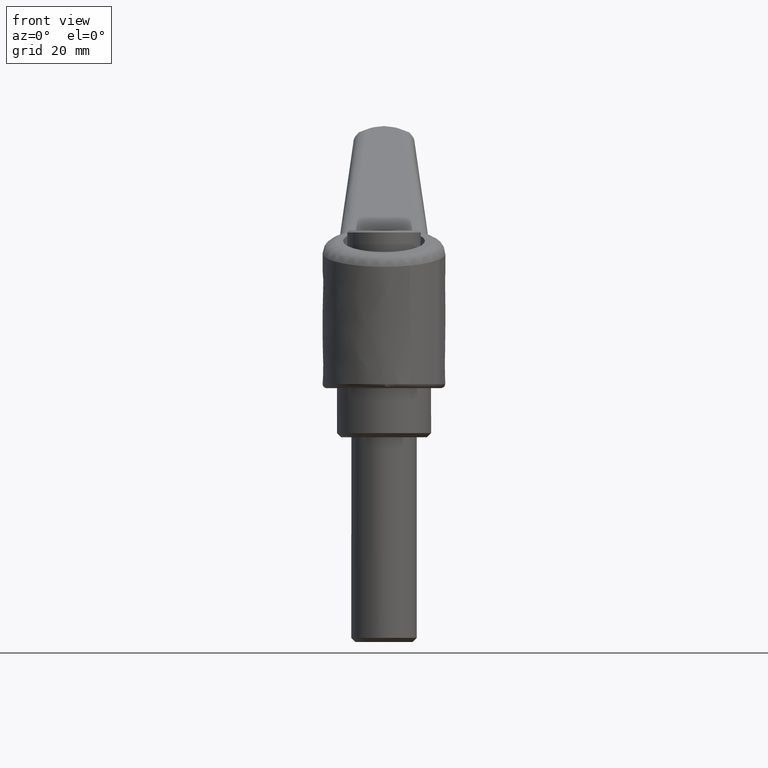
[diagram: clean part render]
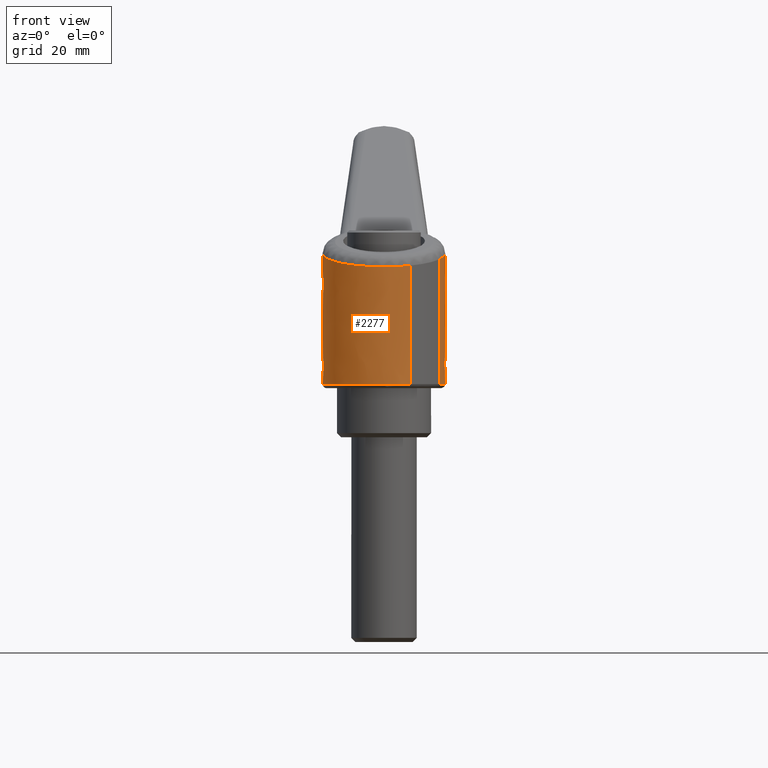
[diagram: same view with one face highlighted and labeled with its STEP entity id]
A machine part, front view. The second image highlights one B-rep face of the part: STEP entity #2277.
In plain terms, the highlighted face is a freeform B-spline surface patch.
Its self-contained STEP definition (entity closure, byte-faithful):
#1974=CARTESIAN_POINT('',(-13.591124882688906,-6.346757000480984,47.708890107250667));
#1975=CARTESIAN_POINT('',(-16.597402736805911,0.090971392818113,47.708890107250674));
#1976=CARTESIAN_POINT('',(-13.520736450297839,6.495358792367610,47.708890107250681));
#1977=CARTESIAN_POINT('',(-7.025377657930231,20.016095242665443,47.708890107250681));
#1978=CARTESIAN_POINT('',(6.495358792367610,13.520736450297839,47.708890107250681));
#1979=CARTESIAN_POINT('',(20.016095242665443,7.025377657930231,47.708890107250681));
#1980=CARTESIAN_POINT('',(13.520736450297839,-6.495358792367610,47.708890107250681));
#1981=CARTESIAN_POINT('',(7.025377657930231,-20.016095242665443,47.708890107250681));
#1982=CARTESIAN_POINT('',(-6.495358792367610,-13.520736450297839,47.708890107250681));
#1983=CARTESIAN_POINT('',(-13.591124882688906,-6.346757000480984,12.132277743066284));
#1984=CARTESIAN_POINT('',(-16.597402736805911,0.090971392818113,12.132277743066286));
#1985=CARTESIAN_POINT('',(-13.520736450297839,6.495358792367610,12.132277743066281));
#1986=CARTESIAN_POINT('',(-7.025377657930231,20.016095242665443,12.132277743066282));
#1987=CARTESIAN_POINT('',(6.495358792367610,13.520736450297839,12.132277743066281));
#1988=CARTESIAN_POINT('',(20.016095242665443,7.025377657930231,12.132277743066282));
#1989=CARTESIAN_POINT('',(13.520736450297839,-6.495358792367610,12.132277743066281));
#1990=CARTESIAN_POINT('',(7.025377657930231,-20.016095242665443,12.132277743066282));
#1991=CARTESIAN_POINT('',(-6.495358792367610,-13.520736450297839,12.132277743066281));
#1999=(BOUNDED_SURFACE()B_SPLINE_SURFACE(2,1,((#1974,#1983),(#1975,#1984),(#1976,#1985),(#1977,#1986),(#1978,#1987),(#1979,#1988),(#1980,#1989),(#1981,#1990),(#1982,#1991)),.UNSPECIFIED.,.F.,.F.,.U.)B_SPLINE_SURFACE_WITH_KNOTS((3,2,2,2,3),(2,2),(0.0,13.917575695735991,38.770389438121683,63.623203180507389,88.476016922893081),(0.0,35.576612364184399),.UNSPECIFIED.)GEOMETRIC_REPRESENTATION_ITEM()RATIONAL_B_SPLINE_SURFACE(((0.855662221768731,0.855662221768731),(0.835979797464467,0.835979797464467),(1.0,1.0),(0.707106781186548,0.707106781186548),(1.0,1.0),(0.707106781186548,0.707106781186548),(1.0,1.0),(0.707106781186548,0.707106781186548),(1.0,1.0)))REPRESENTATION_ITEM('')SURFACE());
#2000=CARTESIAN_POINT('',(-14.995262839249410,-0.376951431653497,12.999999995851271));
#2001=VERTEX_POINT('',#2000);
#2002=CARTESIAN_POINT('',(-13.591124882681889,-6.346757000495048,12.999999997544970));
#2003=VERTEX_POINT('',#2002);
#2004=CARTESIAN_POINT('',(-14.995262839249412,-0.376951431653497,12.999999995851267));
#2005=CARTESIAN_POINT('',(-14.916542618360234,-3.508469987793015,12.999999996739721));
#2006=CARTESIAN_POINT('',(-13.591124882681889,-6.346757000495050,12.999999997544979));
#2014=(BOUNDED_CURVE()B_SPLINE_CURVE(2,(#2004,#2005,#2006),.UNSPECIFIED.,.F.,.U.)B_SPLINE_CURVE_WITH_KNOTS((3,3),(0.004420108230273,0.071874271187336),.UNSPECIFIED.)CURVE()GEOMETRIC_REPRESENTATION_ITEM()RATIONAL_B_SPLINE_CURVE((0.989826157681395,0.913593169719137,0.880006035200919))REPRESENTATION_ITEM(''));
#2015=EDGE_CURVE('',#2001,#2003,#2014,.T.);
#2016=ORIENTED_EDGE('',*,*,#2015,.T.);
#2017=CARTESIAN_POINT('',(-13.591118296123440,-6.346771105100308,41.912158465186323));
#2018=VERTEX_POINT('',#2017);
#2019=CARTESIAN_POINT('',(-13.591118296123440,-6.346771105100308,41.912158465186323));
#2020=CARTESIAN_POINT('',(-13.591124882681889,-6.346757000495048,12.999999997544970));
#2021=QUASI_UNIFORM_CURVE('',1,(#2019,#2020),.UNSPECIFIED.,.F.,.U.);
#2022=EDGE_CURVE('',#2018,#2003,#2021,.T.);
#2023=ORIENTED_EDGE('',*,*,#2022,.F.);
#2024=CARTESIAN_POINT('',(9.472244752128422,11.630846029235180,46.862331811850687));
#2025=VERTEX_POINT('',#2024);
#2026=CARTESIAN_POINT('',(-13.591118296123438,-6.346771105100308,41.912158465186323));
#2027=CARTESIAN_POINT('',(-17.878908185706003,2.835196582448638,40.991851073208743));
#2028=CARTESIAN_POINT('',(-10.960801264136990,10.240158969460049,42.476708919969923));
#2029=CARTESIAN_POINT('',(-1.393905066633530,20.480316762061573,44.530085811807695));
#2030=CARTESIAN_POINT('',(9.472244752128422,11.630846029235180,46.862331811850687));
#2038=(BOUNDED_CURVE()B_SPLINE_CURVE(2,(#2026,#2027,#2028,#2029,#2030),.UNSPECIFIED.,.F.,.U.)B_SPLINE_CURVE_WITH_KNOTS((3,2,3),(0.406204512863110,0.666666666666667,1.0),.UNSPECIFIED.)CURVE()GEOMETRIC_REPRESENTATION_ITEM()RATIONAL_B_SPLINE_CURVE((0.908002308991056,0.789588303627976,1.0,0.730720063933333,1.0))REPRESENTATION_ITEM(''));
#2039=EDGE_CURVE('',#2018,#2025,#2038,.T.);
#2040=ORIENTED_EDGE('',*,*,#2039,.T.);
#2041=CARTESIAN_POINT('',(9.472244752128411,11.630846029235180,34.696662421268549));
#2042=VERTEX_POINT('',#2041);
#2043=CARTESIAN_POINT('',(9.472244752128422,11.630846029235180,46.862331811850687));
#2044=CARTESIAN_POINT('',(9.472244752128411,11.630846029235180,34.696662421268549));
#2045=QUASI_UNIFORM_CURVE('',1,(#2043,#2044),.UNSPECIFIED.,.F.,.U.);
#2046=EDGE_CURVE('',#2025,#2042,#2045,.T.);
#2047=ORIENTED_EDGE('',*,*,#2046,.T.);
#2048=CARTESIAN_POINT('',(14.746787140129779,2.744497958407485,32.818825813596952));
#2049=VERTEX_POINT('',#2048);
#2050=CARTESIAN_POINT('',(9.472244752128400,11.630846029235199,34.696662421268549));
#2051=CARTESIAN_POINT('',(9.472244752128415,11.630846029235190,34.401252467343383));
#2052=CARTESIAN_POINT('',(9.492944816944775,11.614095426753840,34.109755411152527));
#2053=CARTESIAN_POINT('',(9.558582053859087,11.560030821302719,33.679136675364347));
#2054=CARTESIAN_POINT('',(9.586232739478280,11.537160557609340,33.536683965164009));
#2055=CARTESIAN_POINT('',(9.653679942450317,11.480783746601730,33.254233473932857));
#2056=CARTESIAN_POINT('',(9.732131261601346,11.414717547166370,32.979014300604547));
#2057=CARTESIAN_POINT('',(9.831454725673288,11.329067455086181,32.717900929853677));
#2058=CARTESIAN_POINT('',(9.913361518577082,11.257290138315240,32.527265103854113));
#2059=CARTESIAN_POINT('',(9.941899784470280,11.232106379840880,32.464586915071372));
#2060=CARTESIAN_POINT('',(10.001383381564210,11.179173292667199,32.340956559279682));
#2061=CARTESIAN_POINT('',(10.032411420022051,11.151348919868530,32.279852251577282));
#2062=CARTESIAN_POINT('',(10.192376168567931,11.006600481996090,31.980556803269920));
#2063=CARTESIAN_POINT('',(10.334485880508421,10.873995475359990,31.762735936557540));
#2064=CARTESIAN_POINT('',(10.562947557739809,10.650609508172900,31.463723158300962));
#2065=CARTESIAN_POINT('',(10.641677230648090,10.572043592842951,31.368707297521439));
#2066=CARTESIAN_POINT('',(10.763099641268170,10.447920181294480,31.232866811979509));
#2067=CARTESIAN_POINT('',(10.804233156781970,10.405389434948100,31.188597541427932));
#2068=CARTESIAN_POINT('',(10.886938659385240,10.318825031263000,31.102872865009662));
#2069=CARTESIAN_POINT('',(10.928497129075170,10.274808671006360,31.061420331774489));
#2070=CARTESIAN_POINT('',(11.137114858383530,10.051097265823230,30.860874123145081));
#2071=CARTESIAN_POINT('',(11.306575983725081,9.860585294013822,30.721720190387732));
#2072=CARTESIAN_POINT('',(11.561754138145330,9.557368463816124,30.541335012955219));
#2073=CARTESIAN_POINT('',(11.646992710721159,9.453373959076792,30.485972273195319));
#2074=CARTESIAN_POINT('',(11.817489399223930,9.239354020329184,30.384618995083990));
#2075=CARTESIAN_POINT('',(11.902870152644169,9.129166356521720,30.338569845538149));
#2076=CARTESIAN_POINT('',(12.157861506746899,8.790130176839501,30.215001415268400));
#2077=CARTESIAN_POINT('',(12.322781675888240,8.557552051346672,30.153581011930228));
#2078=CARTESIAN_POINT('',(12.641629783508829,8.079099068573001,30.070286051440601));
#2079=CARTESIAN_POINT('',(12.795563983875560,7.833224848090330,30.048434044170889));
#2080=CARTESIAN_POINT('',(13.017694715186151,7.453931284816294,30.046383570322391));
#2081=CARTESIAN_POINT('',(13.090538015694641,7.325241291298711,30.050921787801979));
#2082=CARTESIAN_POINT('',(13.230737667125741,7.068870227963883,30.070316228730888));
#2083=CARTESIAN_POINT('',(13.298359930187500,6.940768177493420,30.085130714842201));
#2084=CARTESIAN_POINT('',(13.494111860897871,6.556790677737292,30.144632792831349));
#2085=CARTESIAN_POINT('',(13.615138152886979,6.301230969061495,30.204304118509690));
#2086=CARTESIAN_POINT('',(13.783463125659070,5.919080918986607,30.324145567126870));
#2087=CARTESIAN_POINT('',(13.837365806722380,5.791899016394970,30.369167745887150));
#2088=CARTESIAN_POINT('',(13.915012659781530,5.601528304794258,30.444526724312450));
#2089=CARTESIAN_POINT('',(13.940360282627770,5.538138653170063,30.470951859712301));
#2090=CARTESIAN_POINT('',(13.990001664043829,5.411513465866366,30.526463406141239));
#2091=CARTESIAN_POINT('',(14.014333428585701,5.348171552200152,30.555606963317530));
#2092=CARTESIAN_POINT('',(14.132263771835300,5.034958497610840,30.706597363155431));
#2093=CARTESIAN_POINT('',(14.215593958389150,4.793383558122869,30.845053455760269));
#2094=CARTESIAN_POINT('',(14.364096402054869,4.328091043121345,31.155382742955279));
#2095=CARTESIAN_POINT('',(14.429253524544070,4.104378466074226,31.327269760631559));
#2096=CARTESIAN_POINT('',(14.515607515580481,3.782784479812306,31.609994409912488));
#2097=CARTESIAN_POINT('',(14.542489974378681,3.677922128467481,31.708396538594069));
#2098=CARTESIAN_POINT('',(14.592775138381390,3.473044715896026,31.913627395016078));
#2099=CARTESIAN_POINT('',(14.615957167595820,3.373930787567825,32.019560731411062));
#2100=CARTESIAN_POINT('',(14.680240690842460,3.086905375308466,32.346438292570241));
#2101=CARTESIAN_POINT('',(14.716166318582260,2.909030322526693,32.576672565733134));
#2102=CARTESIAN_POINT('',(14.746787140129779,2.744497958407488,32.818825813596952));
#2103=B_SPLINE_CURVE_WITH_KNOTS('',3,(#2050,#2051,#2052,#2053,#2054,#2055,#2056,#2057,#2058,#2059,#2060,#2061,#2062,#2063,#2064,#2065,#2066,#2067,#2068,#2069,#2070,#2071,#2072,#2073,#2074,#2075,#2076,#2077,#2078,#2079,#2080,#2081,#2082,#2083,#2084,#2085,#2086,#2087,#2088,#2089,#2090,#2091,#2092,#2093,#2094,#2095,#2096,#2097,#2098,#2099,#2100,#2101,#2102),.UNSPECIFIED.,.F.,.U.,(4,2,2,1,2,2,2,2,2,2,2,2,2,2,2,2,2,2,2,2,2,2,2,2,2,2,4),(0.0,0.062499999999999,0.093749999999998,0.124999999999997,0.156249999999995,0.171874999999995,0.187499999999994,0.249999999999993,0.281249999999993,0.296874999999993,0.312499999999993,0.374999999999993,0.406249999999993,0.437499999999993,0.499999999999993,0.562499999999993,0.593749999999993,0.624999999999993,0.687499999999993,0.718749999999993,0.734374999999993,0.749999999999994,0.812499999999994,0.874999999999995,0.906249999999996,0.937499999999997,1.0),.UNSPECIFIED.);
#2104=EDGE_CURVE('',#2042,#2049,#2103,.T.);
#2105=ORIENTED_EDGE('',*,*,#2104,.T.);
#2106=CARTESIAN_POINT('',(14.746787140129801,-2.744497958407470,32.818825813596952));
#2107=VERTEX_POINT('',#2106);
#2108=CARTESIAN_POINT('',(14.746787140129790,2.744497958407487,32.818825813596973));
#2109=CARTESIAN_POINT('',(15.257560705390359,7.806256E-015,33.004732164855099));
#2110=CARTESIAN_POINT('',(14.746787140129790,-2.744497958407470,32.818825813596973));
#2118=(BOUNDED_CURVE()B_SPLINE_CURVE(2,(#2108,#2109,#2110),.UNSPECIFIED.,.F.,.U.)CURVE()GEOMETRIC_REPRESENTATION_ITEM()QUASI_UNIFORM_CURVE()RATIONAL_B_SPLINE_CURVE((1.0,0.983119142675316,1.0))REPRESENTATION_ITEM(''));
#2119=EDGE_CURVE('',#2049,#2107,#2118,.T.);
#2120=ORIENTED_EDGE('',*,*,#2119,.T.);
#2121=CARTESIAN_POINT('',(9.472244752128411,-11.630846029235180,34.696662421268549));
#2122=VERTEX_POINT('',#2121);
#2123=CARTESIAN_POINT('',(14.746787140129801,-2.744497958407470,32.818825813596952));
#2124=CARTESIAN_POINT('',(14.716179332458530,-2.908960396126362,32.576775481077732));
#2125=CARTESIAN_POINT('',(14.680383731044749,-3.086113633615762,32.347581720036061));
#2126=CARTESIAN_POINT('',(14.595507139462830,-3.465391059058391,31.915163038263550));
#2127=CARTESIAN_POINT('',(14.546438528985430,-3.667511075274999,31.711931561593289));
#2128=CARTESIAN_POINT('',(14.474447900922151,-3.936172306162459,31.475009534029621));
#2129=CARTESIAN_POINT('',(14.459514306350901,-3.990707966752458,31.428484225866740));
#2130=CARTESIAN_POINT('',(14.428504841583569,-4.101408549250808,31.337188098039309));
#2131=CARTESIAN_POINT('',(14.412395040963100,-4.157686847304808,31.292333145789531));
#2132=CARTESIAN_POINT('',(14.362595742140609,-4.327794645770646,31.161379244055581));
#2133=CARTESIAN_POINT('',(14.327394932473281,-4.443067650794566,31.078718908054562));
#2134=CARTESIAN_POINT('',(14.215339577455151,-4.794215629279675,30.844457828223209));
#2135=CARTESIAN_POINT('',(14.132052260570561,-5.035395940213713,30.706521592145950));
#2136=CARTESIAN_POINT('',(13.992158321267130,-5.407128059806748,30.527119228006779));
#2137=CARTESIAN_POINT('',(13.943028722227940,-5.532704893789415,30.471915490904500));
#2138=CARTESIAN_POINT('',(13.839353549082571,-5.787155323138517,30.370906439408159));
#2139=CARTESIAN_POINT('',(13.784545299284140,-5.916600022642655,30.324949290963900));
#2140=CARTESIAN_POINT('',(13.614216222285760,-6.303371827574208,30.203581590193512));
#2141=CARTESIAN_POINT('',(13.492388125440860,-6.560325690680624,30.143914288401909));
#2142=CARTESIAN_POINT('',(13.231494976419420,-7.071771431849961,30.065003044302969));
#2143=CARTESIAN_POINT('',(13.092434760879710,-7.326264348791181,30.045749980053579));
#2144=CARTESIAN_POINT('',(12.907213109229151,-7.642592791893965,30.047389479833239));
#2145=CARTESIAN_POINT('',(12.869515196833420,-7.705905671814455,30.049017387542520));
#2146=CARTESIAN_POINT('',(12.793371392644589,-7.831669811367920,30.054866542396159));
#2147=CARTESIAN_POINT('',(12.754998944988110,-7.894005085454977,30.059075712349841));
#2148=CARTESIAN_POINT('',(12.639003662415121,-8.079408637072676,30.075474866130449));
#2149=CARTESIAN_POINT('',(12.560502567285941,-8.200876287886189,30.091429327246580));
#2150=CARTESIAN_POINT('',(12.321684850609380,-8.559116132539977,30.153969119739749));
#2151=CARTESIAN_POINT('',(12.158042493786420,-8.789748266704914,30.215112002993600));
#2152=CARTESIAN_POINT('',(11.906866197204691,-9.123922146207402,30.336536621418421));
#2153=CARTESIAN_POINT('',(11.822190923069019,-9.233345244529897,30.381991639431519));
#2154=CARTESIAN_POINT('',(11.651140472893109,-9.448269064071502,30.483347539799269));
#2155=CARTESIAN_POINT('',(11.564449633988220,-9.554124850310478,30.539503150969249));
#2156=CARTESIAN_POINT('',(11.306811537522210,-9.860385429810904,30.721408899661800));
#2157=CARTESIAN_POINT('',(11.137060854232860,-10.051120330726789,30.861021462363741));
#2158=CARTESIAN_POINT('',(10.888295559356161,-10.317936126256720,31.100019199949319));
#2159=CARTESIAN_POINT('',(10.806363085059299,-10.403644147973910,31.184647997462609));
#2160=CARTESIAN_POINT('',(10.685455751991560,-10.527314901872240,31.319644648345701));
#2161=CARTESIAN_POINT('',(10.645486466698159,-10.567722148678190,31.365988505730360));
#2162=CARTESIAN_POINT('',(10.566316547764510,-10.646881615607221,31.461504859669098));
#2163=CARTESIAN_POINT('',(10.527074404683150,-10.685672291026529,31.510742022057570));
#2164=CARTESIAN_POINT('',(10.334990420535400,-10.873554080179360,31.761812632679430));
#2165=CARTESIAN_POINT('',(10.192916395508870,-11.006080857413510,31.979917197608330));
#2166=CARTESIAN_POINT('',(10.034117750205970,-11.149812375343430,32.276569577954263));
#2167=CARTESIAN_POINT('',(10.003304105646500,-11.177454931166350,32.337109273799371));
#2168=CARTESIAN_POINT('',(9.943703443924882,-11.230509943345210,32.460702242025192));
#2169=CARTESIAN_POINT('',(9.914842243126806,-11.255987039956240,32.523935925524633));
#2170=CARTESIAN_POINT('',(9.832228910095113,-11.328399642425589,32.715872478525377));
#2171=CARTESIAN_POINT('',(9.782370977065115,-11.371395581448271,32.846873160627233));
#2172=CARTESIAN_POINT('',(9.693415016618042,-11.447319542945900,33.114930979737260));
#2173=CARTESIAN_POINT('',(9.654317864299898,-11.480246483342411,33.251988679676572));
#2174=CARTESIAN_POINT('',(9.603986417718883,-11.522322815911791,33.462130695155373));
#2175=CARTESIAN_POINT('',(9.588594892857493,-11.535128005917350,33.532937581602667));
#2176=CARTESIAN_POINT('',(9.560621731442971,-11.558323504751529,33.676075687166417));
#2177=CARTESIAN_POINT('',(9.548099412063511,-11.568664657265030,33.748128965138903));
#2178=CARTESIAN_POINT('',(9.492933054654261,-11.614107429254430,34.108970346872837));
#2179=CARTESIAN_POINT('',(9.472244752128459,-11.630846029235149,34.401247560306452));
#2180=CARTESIAN_POINT('',(9.472244752128441,-11.630846029235160,34.696662421268549));
#2181=B_SPLINE_CURVE_WITH_KNOTS('',3,(#2123,#2124,#2125,#2126,#2127,#2128,#2129,#2130,#2131,#2132,#2133,#2134,#2135,#2136,#2137,#2138,#2139,#2140,#2141,#2142,#2143,#2144,#2145,#2146,#2147,#2148,#2149,#2150,#2151,#2152,#2153,#2154,#2155,#2156,#2157,#2158,#2159,#2160,#2161,#2162,#2163,#2164,#2165,#2166,#2167,#2168,#2169,#2170,#2171,#2172,#2173,#2174,#2175,#2176,#2177,#2178,#2179,#2180),.UNSPECIFIED.,.F.,.U.,(4,2,2,2,2,2,2,2,2,2,2,2,2,2,2,2,2,2,2,2,2,2,2,2,2,2,2,2,4),(0.0,0.062500000000001,0.125000000000002,0.140625000000001,0.156250000000001,0.187500000000001,0.250000000000001,0.281250000000001,0.312500000000001,0.375000000000001,0.437500000000001,0.453125000000001,0.468750000000001,0.500000000000002,0.562500000000002,0.593750000000003,0.625000000000003,0.687500000000003,0.718750000000003,0.734375000000003,0.750000000000003,0.812500000000003,0.828125000000003,0.843750000000004,0.875000000000003,0.906250000000002,0.921875000000002,0.937500000000002,1.0),.UNSPECIFIED.);
#2182=EDGE_CURVE('',#2107,#2122,#2181,.T.);
#2183=ORIENTED_EDGE('',*,*,#2182,.T.);
#2184=CARTESIAN_POINT('',(9.472244752128422,-11.630846029235180,46.862331811850687));
#2185=VERTEX_POINT('',#2184);
#2186=CARTESIAN_POINT('',(9.472244752128411,-11.630846029235180,34.696662421268549));
#2187=CARTESIAN_POINT('',(9.472244752128422,-11.630846029235180,46.862331811850687));
#2188=QUASI_UNIFORM_CURVE('',1,(#2186,#2187),.UNSPECIFIED.,.F.,.U.);
#2189=EDGE_CURVE('',#2122,#2185,#2188,.T.);
#2190=ORIENTED_EDGE('',*,*,#2189,.T.);
#2191=CARTESIAN_POINT('',(-6.495377530397809,-13.520727448520329,43.435143650820500));
#2192=VERTEX_POINT('',#2191);
#2193=CARTESIAN_POINT('',(9.472244752128422,-11.630846029235180,46.862331811850687));
#2194=CARTESIAN_POINT('',(2.088334876930437,-17.644354313859541,45.277497055466206));
#2195=CARTESIAN_POINT('',(-6.495377530397809,-13.520727448520333,43.435143650820500));
#2203=(BOUNDED_CURVE()B_SPLINE_CURVE(2,(#2193,#2194,#2195),.UNSPECIFIED.,.F.,.U.)B_SPLINE_CURVE_WITH_KNOTS((3,3),(0.0,0.247903999850875),.UNSPECIFIED.)CURVE()GEOMETRIC_REPRESENTATION_ITEM()RATIONAL_B_SPLINE_CURVE((1.0,0.799733280308456,0.897348085708199))REPRESENTATION_ITEM(''));
#2204=EDGE_CURVE('',#2185,#2192,#2203,.T.);
#2205=ORIENTED_EDGE('',*,*,#2204,.T.);
#2206=CARTESIAN_POINT('',(-6.495353380009064,-13.520739050390850,12.999999999580179));
#2207=VERTEX_POINT('',#2206);
#2208=CARTESIAN_POINT('',(-6.495377530397809,-13.520727448520329,43.435143650820500));
#2209=CARTESIAN_POINT('',(-6.495353380009064,-13.520739050390850,12.999999999580179));
#2210=QUASI_UNIFORM_CURVE('',1,(#2208,#2209),.UNSPECIFIED.,.F.,.U.);
#2211=EDGE_CURVE('',#2192,#2207,#2210,.T.);
#2212=ORIENTED_EDGE('',*,*,#2211,.T.);
#2213=CARTESIAN_POINT('',(15.0,0.0,13.0));
#2214=VERTEX_POINT('',#2213);
#2215=CARTESIAN_POINT('',(-6.495353380009064,-13.520739050390853,12.999999999580178));
#2216=CARTESIAN_POINT('',(-3.416121178627138,-15.000000000000004,13.000000000000004));
#2217=CARTESIAN_POINT('',(0.0,-15.0,13.0));
#2218=CARTESIAN_POINT('',(14.999999999999996,-14.999999999999996,13.0));
#2219=CARTESIAN_POINT('',(15.0,0.0,13.0));
#2227=(BOUNDED_CURVE()B_SPLINE_CURVE(2,(#2215,#2216,#2217,#2218,#2219),.UNSPECIFIED.,.F.,.U.)B_SPLINE_CURVE_WITH_KNOTS((3,2,3),(0.176422116877355,0.250000000000000,0.500000000000000),.UNSPECIFIED.)CURVE()GEOMETRIC_REPRESENTATION_ITEM()RATIONAL_B_SPLINE_CURVE((0.878336694211204,0.913798147914914,1.0,0.707106781186547,1.0))REPRESENTATION_ITEM(''));
#2228=EDGE_CURVE('',#2207,#2214,#2227,.T.);
#2229=ORIENTED_EDGE('',*,*,#2228,.T.);
#2230=CARTESIAN_POINT('',(-0.376951431746356,14.995262839247079,12.999999995882330));
#2231=VERTEX_POINT('',#2230);
#2232=CARTESIAN_POINT('',(15.0,0.0,13.0));
#2233=CARTESIAN_POINT('',(14.999999999999996,14.999999999999996,13.0));
#2234=CARTESIAN_POINT('',(0.0,15.0,13.0));
#2235=CARTESIAN_POINT('',(-0.188505481947062,14.999999999999998,13.000000000000002));
#2236=CARTESIAN_POINT('',(-0.376951431746356,14.995262839247072,12.999999995882332));
#2244=(BOUNDED_CURVE()B_SPLINE_CURVE(2,(#2232,#2233,#2234,#2235,#2236),.UNSPECIFIED.,.F.,.U.)B_SPLINE_CURVE_WITH_KNOTS((3,2,3),(0.500000000000000,0.750000000000000,0.754420108232440),.UNSPECIFIED.)CURVE()GEOMETRIC_REPRESENTATION_ITEM()RATIONAL_B_SPLINE_CURVE((1.0,0.707106781186547,1.0,0.994821521089187,0.989826157676495))REPRESENTATION_ITEM(''));
#2245=EDGE_CURVE('',#2214,#2231,#2244,.T.);
#2246=ORIENTED_EDGE('',*,*,#2245,.T.);
#2247=CARTESIAN_POINT('',(-15.0,0.0,13.0));
#2248=VERTEX_POINT('',#2247);
#2249=CARTESIAN_POINT('',(-0.376951431746356,14.995262839247079,12.999999995882332));
#2250=CARTESIAN_POINT('',(-15.000000000000002,14.627668142521806,12.999999999999998));
#2251=CARTESIAN_POINT('',(-15.0,0.0,13.0));
#2259=(BOUNDED_CURVE()B_SPLINE_CURVE(2,(#2249,#2250,#2251),.UNSPECIFIED.,.F.,.U.)B_SPLINE_CURVE_WITH_KNOTS((3,3),(0.754420108232440,1.0),.UNSPECIFIED.)CURVE()GEOMETRIC_REPRESENTATION_ITEM()RATIONAL_B_SPLINE_CURVE((0.989826157676497,0.712285260097360,1.0))REPRESENTATION_ITEM(''));
#2260=EDGE_CURVE('',#2231,#2248,#2259,.T.);
#2261=ORIENTED_EDGE('',*,*,#2260,.T.);
#2262=CARTESIAN_POINT('',(-15.0,0.0,13.0));
#2263=CARTESIAN_POINT('',(-15.000000000000002,-0.188505481854131,13.000000000000007));
#2264=CARTESIAN_POINT('',(-14.995262839249412,-0.376951431653497,12.999999995851267));
#2272=(BOUNDED_CURVE()B_SPLINE_CURVE(2,(#2262,#2263,#2264),.UNSPECIFIED.,.F.,.U.)B_SPLINE_CURVE_WITH_KNOTS((3,3),(0.0,0.004420108230273),.UNSPECIFIED.)CURVE()GEOMETRIC_REPRESENTATION_ITEM()RATIONAL_B_SPLINE_CURVE((1.0,0.994821521091727,0.989826157681395))REPRESENTATION_ITEM(''));
#2273=EDGE_CURVE('',#2248,#2001,#2272,.T.);
#2274=ORIENTED_EDGE('',*,*,#2273,.T.);
#2275=EDGE_LOOP('',(#2016,#2023,#2040,#2047,#2105,#2120,#2183,#2190,#2205,#2212,#2229,#2246,#2261,#2274));
#2276=FACE_OUTER_BOUND('',#2275,.T.);
#2277=ADVANCED_FACE('',(#2276),#1999,.T.);